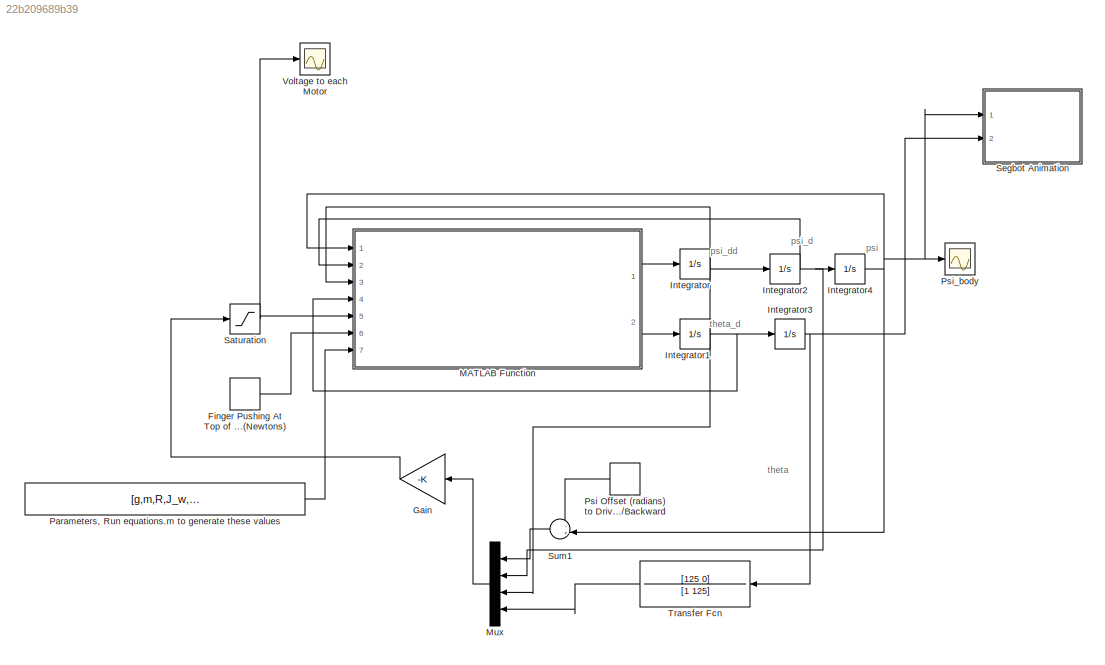
MODEL slx_22b209689b39
KIND model
CONFIG AbsTol = auto
CONFIG EnableMultiTasking = off
CONFIG FixedStep = auto
CONFIG MaxStep = auto
CONFIG MinStep = auto
CONFIG RelTol = 1e-3
CONFIG SampleTimeConstraint = Unconstrained
CONFIG SolverName = VariableStepAuto
CONFIG StartTime = 0.0
CONFIG StopTime = 200
BLOCK [DiscretePulseGenerator] Finger Pushing At Top of Body (Newtons)
  Amplitude = 0.1
  Period = 4
  PhaseDelay = 2
  Ports = [0, 1]
  PulseType = Time based
  PulseWidth = 50
BLOCK [Gain] Gain
  Gain = -K
  Multiplication = Matrix(K*u)
BLOCK [Integrator] Integrator
  Ports = [1, 1]
BLOCK [Integrator] Integrator1
  Ports = [1, 1]
BLOCK [Integrator] Integrator2
  Ports = [1, 1]
BLOCK [Integrator] Integrator3
  Ports = [1, 1]
BLOCK [Integrator] Integrator4
  InitialCondition = 0.1
  Ports = [1, 1]
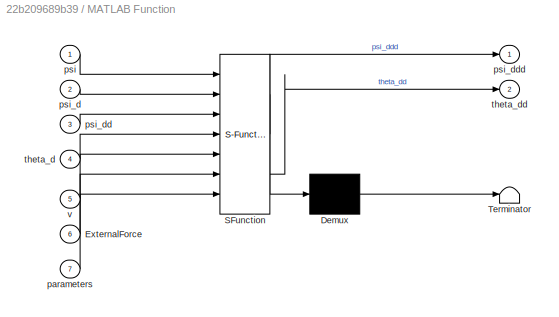
BLOCK [SubSystem] MATLAB Function
  ErrorFcn = Stateflow.Translate.translate
  PermitHierarchicalResolution = ExplicitOnly
  Ports = [7, 2]
  RequestExecContextInheritance = off
  SFBlockType = MATLAB Function
  TreatAsAtomicUnit = on
BLOCK [Demux] MATLAB Function/ Demux 
  Outputs = 1
  Ports = [1, 1]
BLOCK [S-Function] MATLAB Function/ SFunction 
  EnableBusSupport = on
  FunctionName = sf_sfun
  PortCounts = [7 3]
  Ports = [7, 3]
  SFcnIsStateOwnerBlock = off
  SFunctionDeploymentMode = off
  Tag = Stateflow S-Function 2
BLOCK [Terminator] MATLAB Function/ Terminator 
BLOCK [Inport] MATLAB Function/ExternalForce
  Port = 6
BLOCK [Inport] MATLAB Function/parameters
  Port = 7
BLOCK [Inport] MATLAB Function/psi
BLOCK [Inport] MATLAB Function/psi_d
  Port = 2
BLOCK [Inport] MATLAB Function/psi_dd
  Port = 3
BLOCK [Outport] MATLAB Function/psi_ddd
BLOCK [Inport] MATLAB Function/theta_d
  Port = 4
BLOCK [Outport] MATLAB Function/theta_dd
  Port = 2
BLOCK [Inport] MATLAB Function/v
  Port = 5
BLOCK [Mux] Mux
  DisplayOption = bar
  Ports = [4, 1]
BLOCK [Constant] Parameters,  Run equations.m to generate these values
  Value = [g,m,R,J_w,M,L,J_psi,J_m,R_m,K_b,K_t,n,f_m,alpha,beta,a]
BLOCK [DiscretePulseGenerator] Psi Offset (radians) to Drive Forward//Backward
  Amplitude = 0
  Period = 4
  PhaseDelay = 2
  Ports = [0, 1]
  PulseType = Time based
  PulseWidth = 50
BLOCK [Scope] Psi_body
  Floating = off
  NumInputPorts = 1
  Ports = [1]
  ScopeSpecificationString = Simulink.scopes.TimeScopeBlockCfg('CurrentConfiguration', extmgr.ConfigurationSet(extmgr.Configuration('Core','General UI',true),extmgr.Configuration('Core','Source UI',true),extmgr.Configuration('Sources','WiredSimulink',true,'DataLoggingVariableName','ScopeData1'),extmgr.Configuration('Visuals','Time Domain',true,'SerializedDisplays',{struct('MinYLimReal','-0.05137','MaxYLimReal','0.11682','YLab...<+1478ch>
BLOCK [Saturate] Saturation
  LowerLimit = -12
  UpperLimit = 12
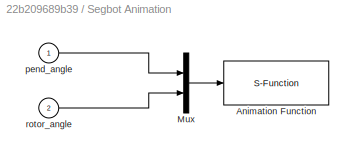
BLOCK [SubSystem] Segbot Animation
  Ports = [2]
  RequestExecContextInheritance = off
  ShowPortLabels = none
BLOCK [S-Function] Segbot Animation/Animation Function
  DeleteFcn = if ~isempty(findobj('type','figure','name','dblpend1 Animation'));close('dblpend1 Animation'); end;
  EnableBusSupport = off
  FunctionName = segbotanim
  Parameters = 0.05
  Ports = [1]
  SFcnIsStateOwnerBlock = off
  SFunctionDeploymentMode = off
BLOCK [Mux] Segbot Animation/Mux
  DisplayOption = bar
  Inputs = 2
  Ports = [2, 1]
BLOCK [Inport] Segbot Animation/pend_angle
BLOCK [Inport] Segbot Animation/rotor_angle
  Port = 2
BLOCK [Sum] Sum1
  Inputs = -+|
  Ports = [2, 1]
BLOCK [TransferFcn] Transfer Fcn
  Denominator = [1 125]
  Numerator = [125 0]
BLOCK [Scope] Voltage to each Motor
  Floating = off
  NumInputPorts = 1
  Ports = [1]
  ScopeSpecificationString = Simulink.scopes.TimeScopeBlockCfg('CurrentConfiguration', extmgr.ConfigurationSet(extmgr.Configuration('Core','General UI',true),extmgr.Configuration('Core','Source UI',true),extmgr.Configuration('Sources','WiredSimulink',true),extmgr.Configuration('Visuals','Time Domain',true,'SerializedDisplays',{struct('MinYLimReal','-5.41728','MaxYLimReal','10.13406','YLabelReal','','MinYLimMag','0.00000','Max...<+1391ch>
ANNOTATION (root): psi
ANNOTATION (root): psi_d
ANNOTATION (root): psi_dd
ANNOTATION (root): theta
ANNOTATION (root): theta_d
LINE Finger Pushing At Top of Body (Newtons):1 -> MATLAB Function:6
LINE Gain:1 -> Saturation:1
NET Integrator1:1 -> Integrator3:1, MATLAB Function:4
NET Integrator2:1 -> Integrator4:1, MATLAB Function:2, Mux:2
NET Integrator3:1 -> Segbot Animation:2, Transfer Fcn:1
NET Integrator4:1 -> MATLAB Function:1, Psi_body:1, Segbot Animation:1, Sum1:2
NET Integrator:1 -> Integrator2:1, MATLAB Function:3, Mux:3
LINE MATLAB Function:1 -> Integrator:1
LINE MATLAB Function:2 -> Integrator1:1
LINE Mux:1 -> Gain:1
LINE Parameters,  Run equations.m to generate these values:1 -> MATLAB Function:7
LINE Psi Offset (radians) to Drive Forward//Backward:1 -> Sum1:1
NET Saturation:1 -> MATLAB Function:5, Voltage to each Motor:1
LINE Segbot Animation/Mux:1 -> Segbot Animation/Animation Function:1
LINE Segbot Animation/pend_angle:1 -> Segbot Animation/Mux:1
LINE Segbot Animation/rotor_angle:1 -> Segbot Animation/Mux:2
LINE Sum1:1 -> Mux:1
LINE Transfer Fcn:1 -> Mux:4
note: NET lines group one-source signal fan-out (src -> all destinations, sorted); 1:1 wires keep LINE
CHART MATLAB Function states=1 transitions=1
  STATE_LABEL 'eML_blk_kernel()'
  STATE_LABEL 'SCRIPT:\nfunction [psi_ddd,theta_dd] = fcn(psi,psi_d,psi_dd,theta_d,v,ExternalForce,parameters)\n\n% These are the parameters for the Lego NXTway.\n% g = 9.81;\n% m = 0.03;\n% R = 0.04;\n% J_w = (m*R^2)/2;\n% M = 0.6;\n% L = 0.144/2;\n% J_psi = (M*L^2)/3;\n% J_m = 1e-5;\n% R_m = 6.69;\n% K_b = 0.468;\n% K_t = 0.317;\n% n = 1;\n% f_m = 0.0022;\n% alpha = (n*K_t)/R_m;\n% beta = ((n*K_t*K_b)/R_m) + f_m;\n\n% input param...<+1238ch>'
CHART  states=0 transitions=0
